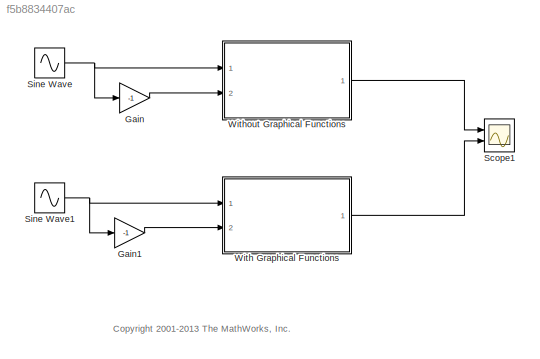
MODEL slx_f5b8834407ac
KIND model
CONFIG AbsTol = auto
CONFIG EnableMultiTasking = on
CONFIG FixedStep = auto
CONFIG MaxStep = .01
CONFIG MinStep = auto
CONFIG RelTol = 1e-3
CONFIG SampleTimeConstraint = Unconstrained
CONFIG Solver = ode45
CONFIG SolverName = ode45
CONFIG StartTime = 0.0
CONFIG StopTime = 10
BLOCK [Gain] Gain
  Gain = -1
BLOCK [Gain] Gain1
  Gain = -1
BLOCK [Scope] Scope1
  NumInputPorts = 2
  Ports = [2]
  ScopeSpecificationString = Simulink.scopes.TimeScopeBlockCfg('CurrentConfiguration', extmgr.ConfigurationSet(extmgr.Configuration('Core','General UI',true),extmgr.Configuration('Core','Source UI',true),extmgr.Configuration('Sources','WiredSimulink',true,'DataLoggingVariableName','ScopeData1','DataLoggingSaveFormat','StructureWithTime'),extmgr.Configuration('Visuals','Time Domain',true,'SerializedDisplays',{struct('MinYLimRe...<+2492ch>
BLOCK [Sin] Sine Wave
  Ports = [0, 1]
  SampleTime = 0
BLOCK [Sin] Sine Wave1
  Ports = [0, 1]
  SampleTime = 0
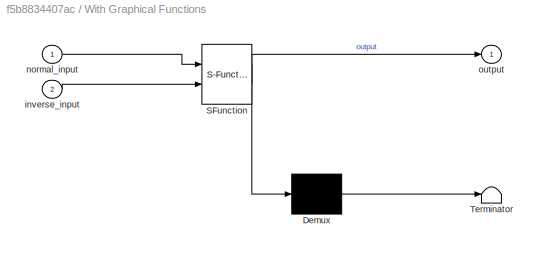
BLOCK [SubSystem] With Graphical Functions
  ErrorFcn = Stateflow.Translate.translate
  PermitHierarchicalResolution = ExplicitOnly
  Ports = [2, 1]
  RequestExecContextInheritance = off
  SFBlockType = Chart
  TreatAsAtomicUnit = on
  Variant = off
BLOCK [Demux] With Graphical Functions/ Demux 
  Outputs = 1
  Ports = [1, 1]
BLOCK [S-Function] With Graphical Functions/ SFunction 
  EnableBusSupport = off
  FunctionName = sf_sfun
  PortCounts = [2 2]
  Ports = [2, 2]
  SFcnIsStateOwnerBlock = off
  SFunctionDeploymentMode = off
  Tag = Stateflow S-Function sf_gfdemo 2
BLOCK [Terminator] With Graphical Functions/ Terminator 
BLOCK [Inport] With Graphical Functions/inverse_input
  IconDisplay = Port number
  Port = 2
BLOCK [Inport] With Graphical Functions/normal_input
  IconDisplay = Port number
BLOCK [Outport] With Graphical Functions/output
  IconDisplay = Port number
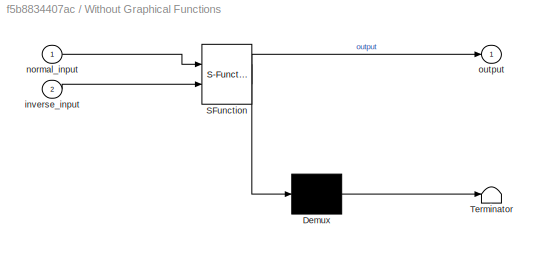
BLOCK [SubSystem] Without Graphical Functions
  ErrorFcn = Stateflow.Translate.translate
  PermitHierarchicalResolution = ExplicitOnly
  Ports = [2, 1]
  RequestExecContextInheritance = off
  SFBlockType = Chart
  TreatAsAtomicUnit = on
  Variant = off
BLOCK [Demux] Without Graphical Functions/ Demux 
  Outputs = 1
  Ports = [1, 1]
BLOCK [S-Function] Without Graphical Functions/ SFunction 
  EnableBusSupport = off
  FunctionName = sf_sfun
  PortCounts = [2 2]
  Ports = [2, 2]
  SFcnIsStateOwnerBlock = off
  SFunctionDeploymentMode = off
  Tag = Stateflow S-Function sf_gfdemo 1
BLOCK [Terminator] Without Graphical Functions/ Terminator 
BLOCK [Inport] Without Graphical Functions/inverse_input
  IconDisplay = Port number
  Port = 2
BLOCK [Inport] Without Graphical Functions/normal_input
  IconDisplay = Port number
BLOCK [Outport] Without Graphical Functions/output
  IconDisplay = Port number
ANNOTATION (root): <copyright redacted>
LINE Gain1:1 -> With Graphical Functions:2
LINE Gain:1 -> Without Graphical Functions:2
NET Sine Wave1:1 -> Gain1:1, With Graphical Functions:1
NET Sine Wave:1 -> Gain:1, Without Graphical Functions:1
LINE With Graphical Functions:1 -> Scope1:2
LINE Without Graphical Functions:1 -> Scope1:1
note: NET lines group one-source signal fan-out (src -> all destinations, sorted); 1:1 wires keep LINE
CHART Without Graphical Functions states=2 transitions=13
  STATE_LABEL 'Normal'
  STATE_LABEL '[normal_input >0.5]'
  STATE_LABEL '{output = 0.5;}'
  STATE_LABEL '{output=normal_input;}'
  STATE_LABEL 'Inverse'
  STATE_LABEL '[inverse_input > 0.5]'
  STATE_LABEL '{output=inverse_input;}'
  STATE_LABEL '{output = 0.5;}'
CHART With Graphical Functions states=3 transitions=11
  STATE_LABEL 'Normal'
  STATE_LABEL '{set_output_data(normal_input);}'
  STATE_LABEL 'set_output_data(input)'
  STATE_LABEL '[input>.5]'
  STATE_LABEL '{output = input;}'
  STATE_LABEL '{output = 0.5;}'
  STATE_LABEL 'Inverse'
  STATE_LABEL '{set_output_data(inverse_input);}'
